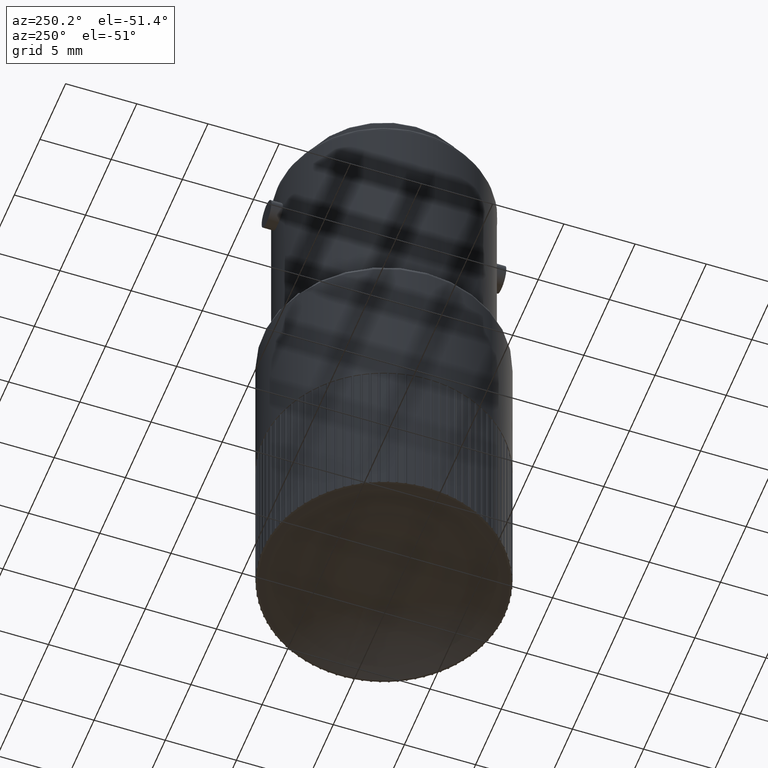
[diagram: clean part render]
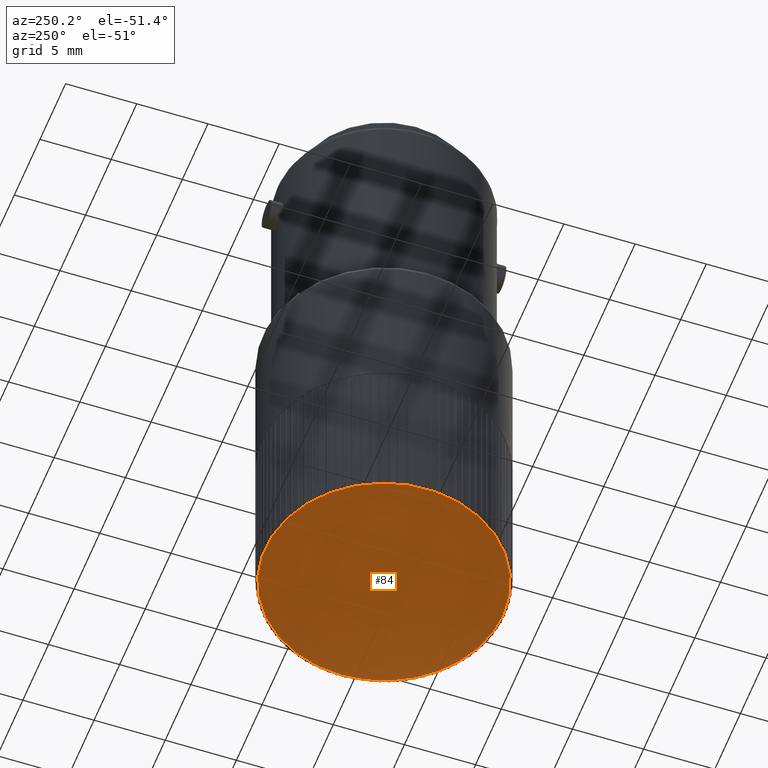
[diagram: same view with one face highlighted and labeled with its STEP entity id]
A machine part, auxiliary view. The second image highlights one B-rep face of the part: STEP entity #84.
In plain terms, the highlighted spherical surface has radius 16 mm.
Its self-contained STEP definition (entity closure, byte-faithful):
#68=CARTESIAN_POINT('',(-11.947431124239413,5.734766993235530,-36.645097894016047));
#69=DIRECTION('',(0.0,0.0,1.0));
#70=DIRECTION('',(1.0,0.0,0.0));
#71=AXIS2_PLACEMENT_3D('',#68,#69,#70);
#72=SPHERICAL_SURFACE('',#71,16.0);
#73=CARTESIAN_POINT('',(-11.947431124239413,-2.620548887251514,-23.0));
#74=VERTEX_POINT('',#73);
#75=CARTESIAN_POINT('',(-11.947431124239413,5.734766993235530,-23.000000000000004));
#76=DIRECTION('',(0.0,0.0,1.0));
#77=DIRECTION('',(0.0,-1.0,0.0));
#78=AXIS2_PLACEMENT_3D('',#75,#76,#77);
#79=CIRCLE('',#78,8.355315880487048);
#80=EDGE_CURVE('',#74,#74,#79,.T.);
#81=ORIENTED_EDGE('',*,*,#80,.F.);
#82=EDGE_LOOP('',(#81));
#83=FACE_OUTER_BOUND('',#82,.T.);
#84=ADVANCED_FACE('',(#83),#72,.F.);